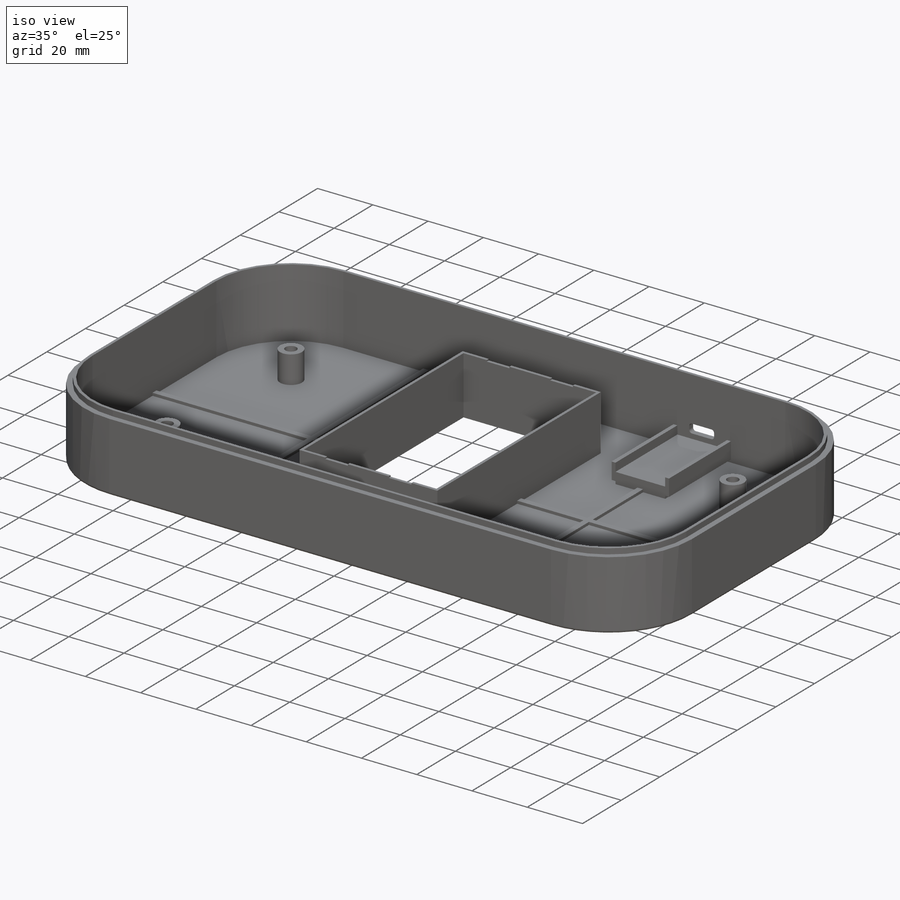
[diagram: iso view]
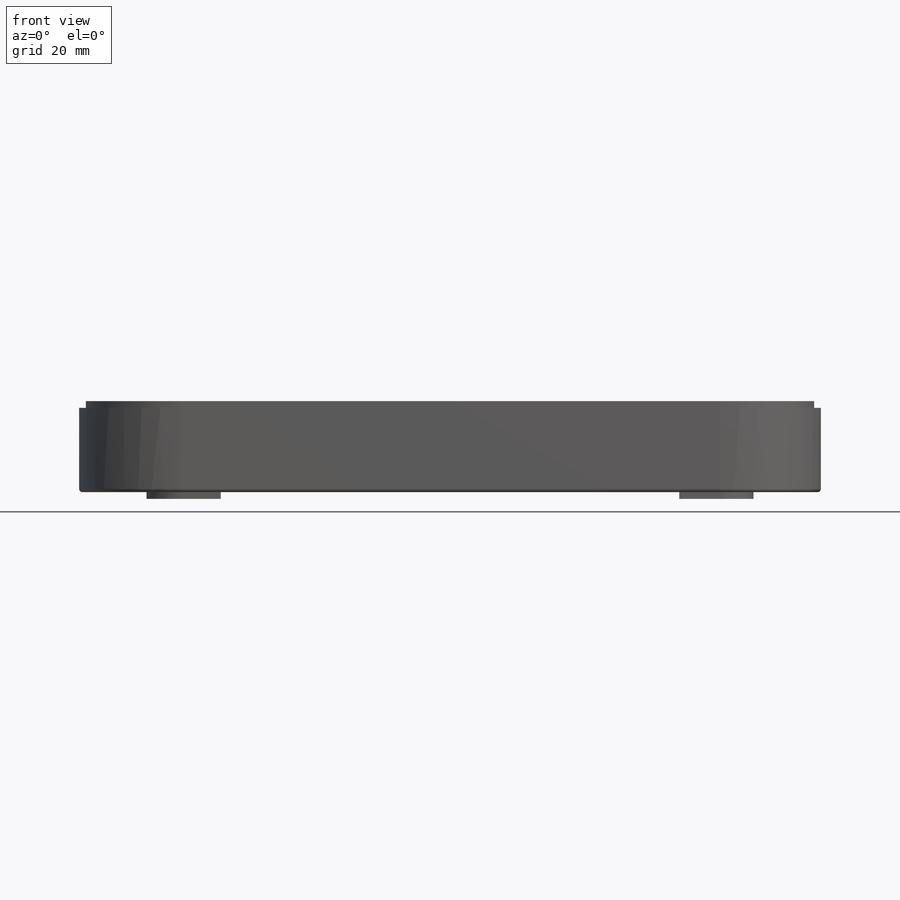
[diagram: front view]
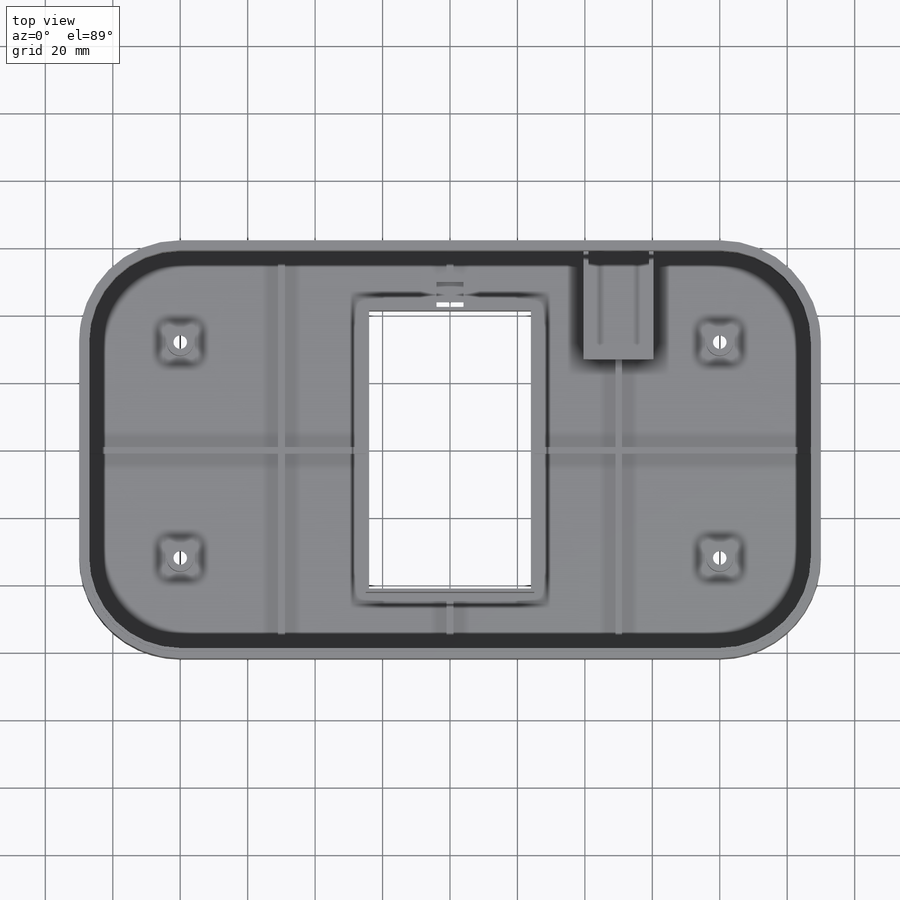
[diagram: top view]
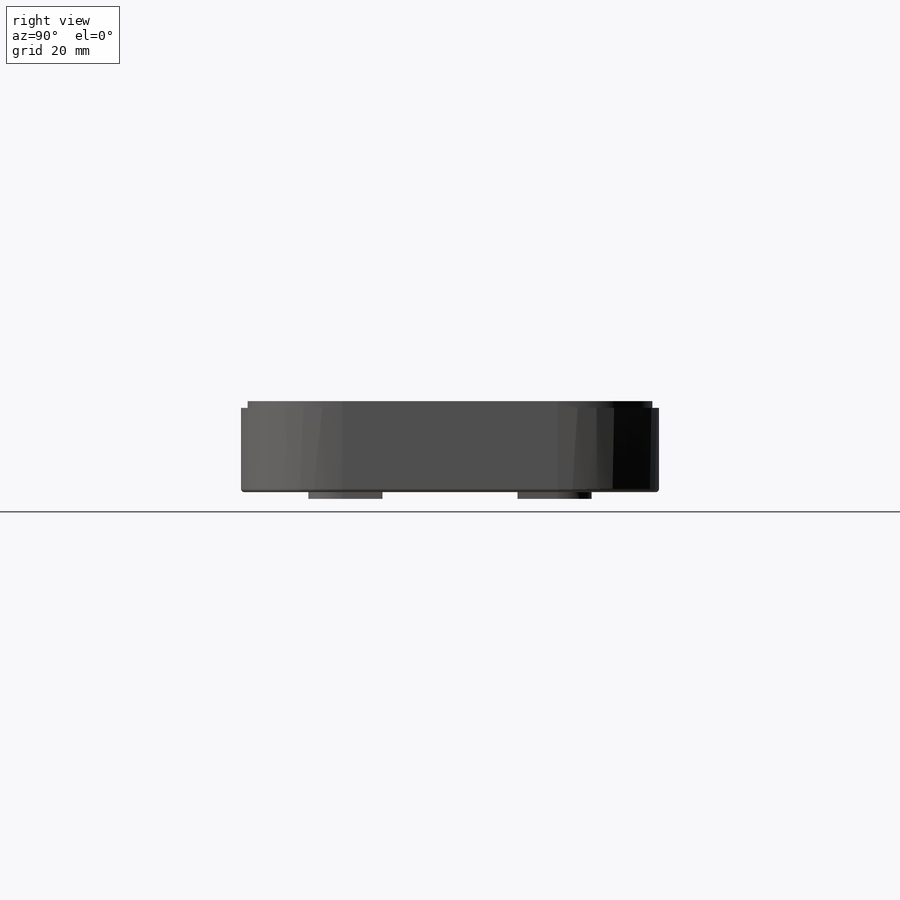
[diagram: right view]
SOLIDWORKS PART (.sldprt)
format: sldprt  version: not decoded by parser v0  size: 769,536 bytes
history: native  units: mm
features: sketch x18, cut_extrude x10, extrude x8, fillet x5, material x1 (+13 scaffold rows collapsed)
feature tree (55):
  scaffold x13  (default folders/planes/origin — collapsed)
  material  "Material <not specified>"
  sketch  "Sketch1"  dims[D3=30.0mm D1=220.0mm D2=124.0mm]
  extrude  "Boss-Extrude1"  Depth=25mm
  sketch  "Sketch2"  dims[D1=2.0mm]
  cut_extrude  "Cut-Extrude1"  Depth=23mm
  sketch  "Sketch3"  dims[D1=1.0mm D2=0.0mm]
  extrude  "Boss-Extrude2"  Depth=25mm
  sketch  "Sketch5"  dims[D3=20.0mm D4=20.0mm D1=22.0mm D2=20.0mm]
  extrude  "Boss-Extrude3"  Depth=2mm
  sketch  "Sketch6"  dims[D1=8.0mm D2=8.0mm]
  extrude  "Boss-Extrude4"  Depth=10mm
  sketch  "Sketch7"  dims[D1=4.0mm]
  cut_extrude  "Cut-Extrude2"  Depth=54mm
  sketch  "Sketch8"  dims[D1=7.0mm]
  cut_extrude  "Cut-Extrude3"  Depth=10mm
  sketch  "Sketch9"  dims[D2=50.0mm D1=0.0mm D3=1.0mm D4=1.0mm]
  extrude  "Boss-Extrude5"  Depth=1mm
  fillet  "Fillet1"  Radius=1mm
  sketch  "Sketch11"  dims[D1=84.5mm D2=50.0mm]
  extrude  "Boss-Extrude7"  Depth=22mm
  sketch  "Sketch12"  dims[D1=48.0mm D2=82.5mm]
  cut_extrude  "Cut-Extrude4"  Depth=34.548412mm
  sketch  "Sketch13"  dims[D1=9.4mm D2=8.2mm D3=0.5mm]
  cut_extrude  "Cut-Extrude5"  Depth=94.548412mm
  sketch  "Sketch14"  dims[D1=88.0mm D2=54.0mm]
  cut_extrude  "Cut-Extrude6"  Depth=1mm
  sketch  "Sketch15"  dims[D1=4.0mm D2=~1.344244mm]
  cut_extrude  "Cut-Extrude7"  Depth=2mm
  sketch  "Sketch16"  dims[D1=6.0mm]
  cut_extrude  "Cut-Extrude9"  Depth=2mm
  sketch  "Sketch17"  dims[c1.D1=25.0mm c1.D2=5.9mm c2.D1=18.0mm c2.D2=18.0mm c2.D3=32.0mm]
  extrude  "Boss-Extrude8"  Depth=4mm
  sketch  "Sketch18"
  extrude  "Boss-Extrude9"  Depth=6mm
  sketch  "Sketch19"  dims[c1.D1=4.5mm c1.D2=3.2mm c2.D1=3.2mm c2.D2=1.75mm c2.D3=4.5mm]
  cut_extrude  "Cut-Extrude10"  Depth=6mm
  fillet  "Fillet2"  Radius=1mm
  fillet  "Fillet3"  Radius=1mm
  fillet  "Fillet4"  Radius=1mm
  fillet  "Fillet5"  Radius=1mm
  sketch  "Sketch20"  dims[D1=1.5mm]
  cut_extrude  "Cut-Extrude12"  Depth=1mm
decode coverage: 40 of 41 modeling features carry decoded parameters
note: ~ marks probable driven/reference dimensions
note: suppression state not decoded; provenance and decode notes live in map.json
